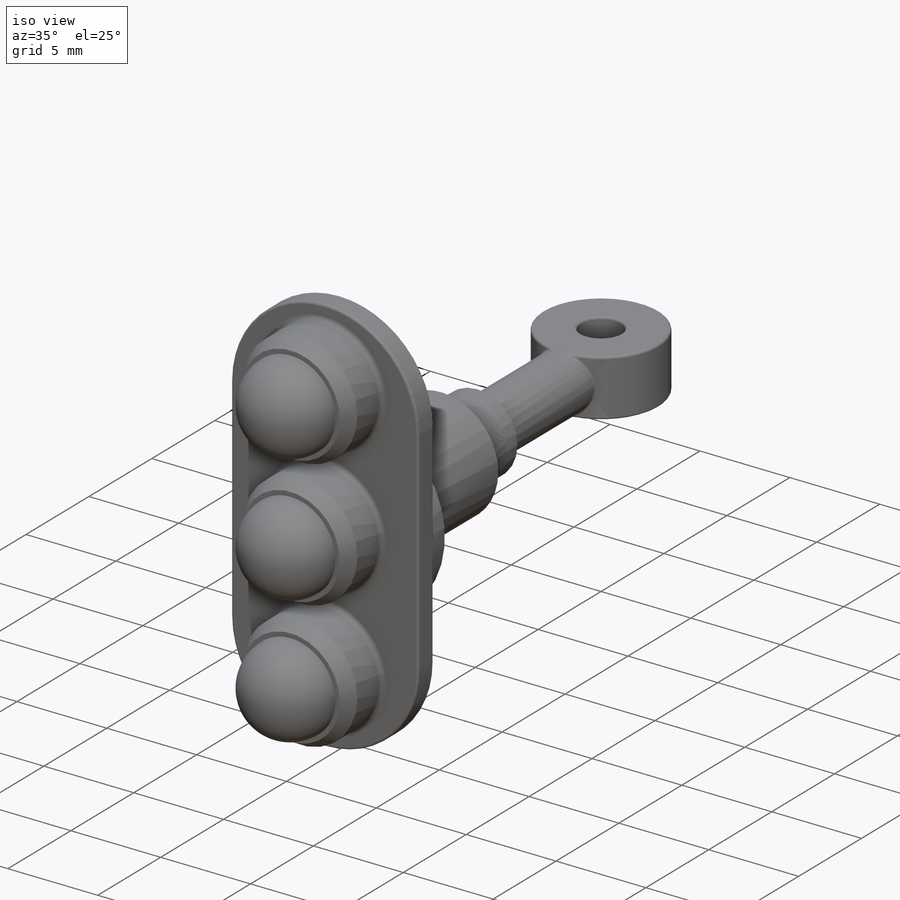
[diagram: iso view]
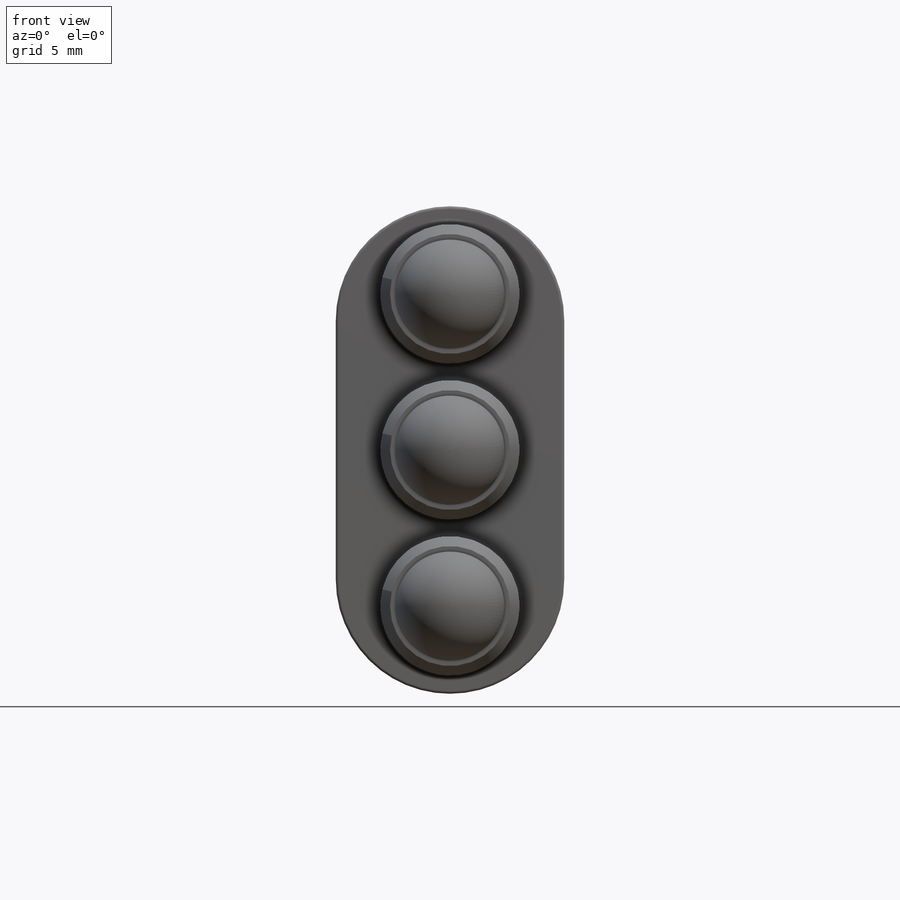
[diagram: front view]
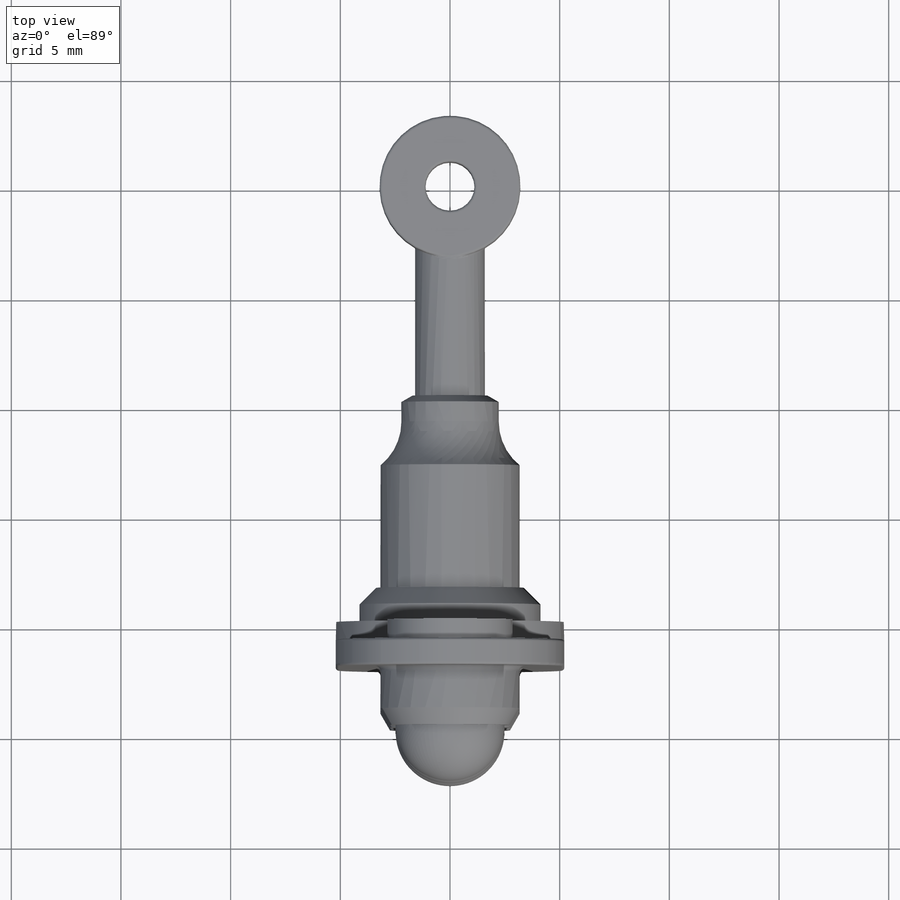
[diagram: top view]
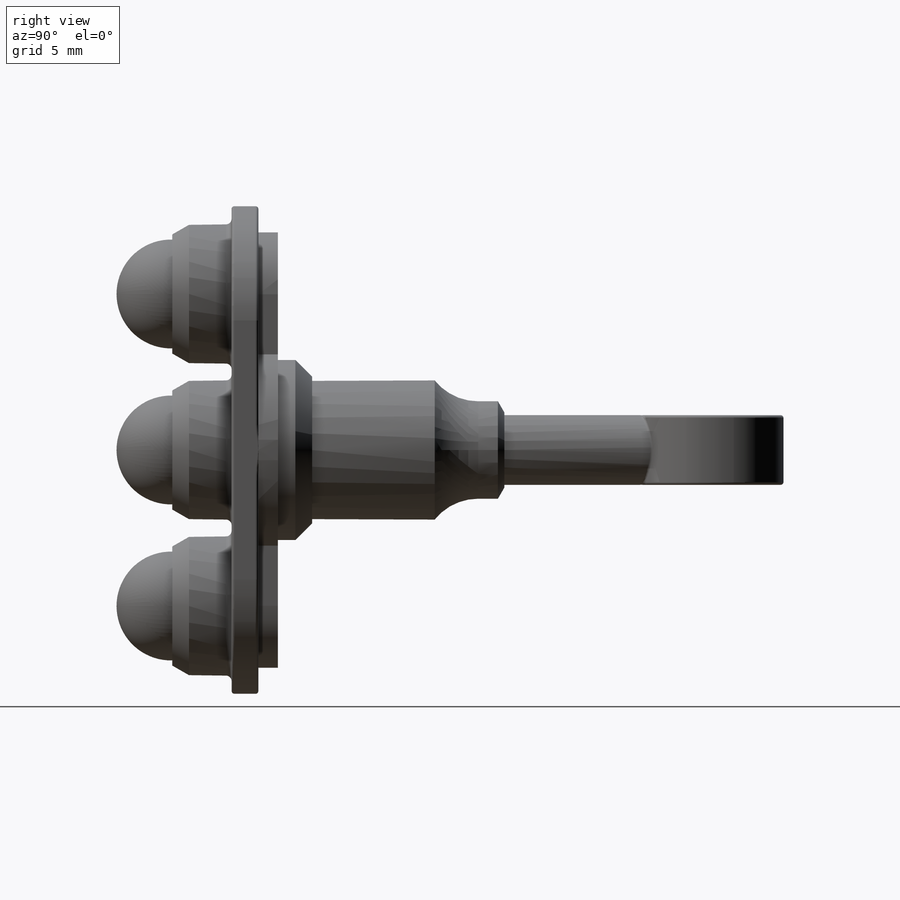
[diagram: right view]
SOLIDWORKS PART (.sldprt)
format: sldprt  version: not decoded by parser v0  size: 728,576 bytes
history: native  units: mm
features: sketch x11, extrude x9, fillet x4, chamfer x3, dome x3, cut_extrude x2, material x1 (+16 scaffold rows collapsed)
feature tree (49):
  scaffold x16  (default folders/planes/origin — collapsed)
  material  "Stainless Steel (ferritic)"
  sketch  "Sketch1"  dims[D1=3.175mm]
  extrude  "Extrude1"  Depth=9.525mm
  sketch  "Sketch5"
  extrude  "Extrude2"  Depth=1.5875mm
  sketch  "Sketch6"  dims[D1=2.2352mm]
  cut_extrude  "Extrude3"  [1 undecoded]
  fillet  "Fillet1"  Radius=0.127mm
  sketch  "Sketch7"  dims[D1=4.445mm]
  extrude  "Extrude4"  Depth=3.175mm
  chamfer  "Chamfer1"  Distance=0.508mm Angle=30deg
  sketch  "Sketch8"  dims[D1=6.35mm]
  extrude  "Extrude5"  Depth=5.588mm
  fillet  "Fillet3"  Radius=2.54mm
  sketch  "Sketch9"  dims[D1=8.255mm]
  extrude  "Extrude6"  Depth=1.5621mm
  chamfer  "Chamfer2"  Distance=0.762mm Angle=45deg
  sketch  "Sketch10"  dims[D1=10.414mm D2=19.8882mm D3=2.8448mm D4=2.8448mm]
  extrude  "Extrude7"  Depth=0.889mm
  sketch  "Sketch11"  dims[D1=22.225mm D2=2.8448mm D3=2.8448mm]
  extrude  "Extrude8"  Depth=1.2192mm
  sketch  "Sketch12"  dims[c1.D1=6.3119mm c1.D2=6.35mm c1.D3=6.3119mm c2.D1=~5.127588mm]
  extrude  "Extrude9"  Depth=2.7051mm
  fillet  "Fillet4"  Radius=0.254mm
  chamfer  "Chamfer3"  Distance=0.762mm Angle=30deg
  sketch  "Sketch14"  dims[D1=0.254mm D2=0.254mm D3=0.254mm]
  cut_extrude  "Extrude10"  Depth=0.254mm
  sketch  "Sketch15"
  extrude  "Extrude11"  Depth=0.254mm
  dome  "Dome4"
  dome  "Dome5"
  dome  "Dome6"
  fillet  "Fillet5"  Radius=0.127mm
decode coverage: 26 of 32 modeling features carry decoded parameters
note: ~ marks probable driven/reference dimensions
note: 1 parameter value undecoded
note: suppression state not decoded; provenance and decode notes live in map.json
